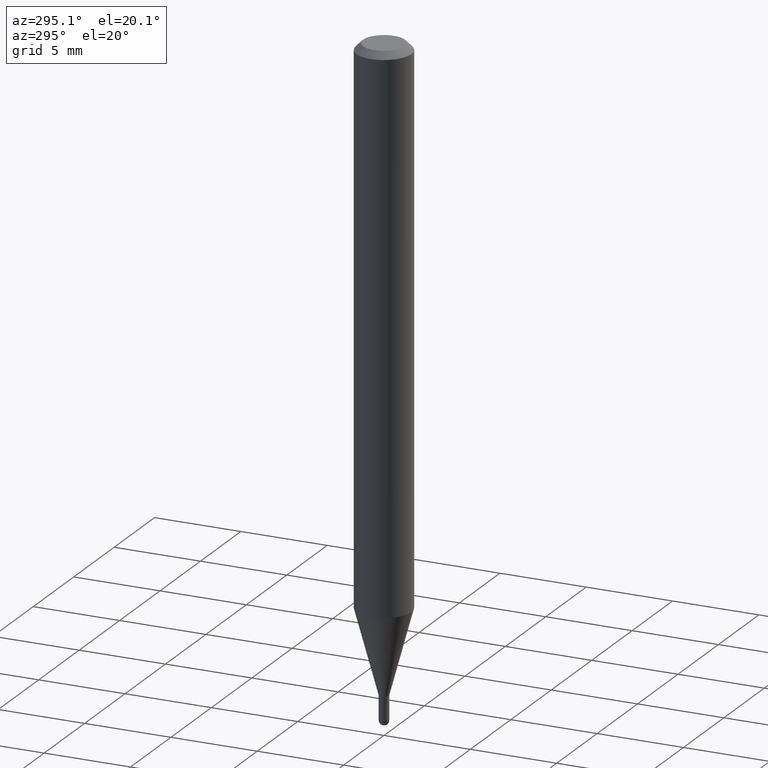
[diagram: clean part render]
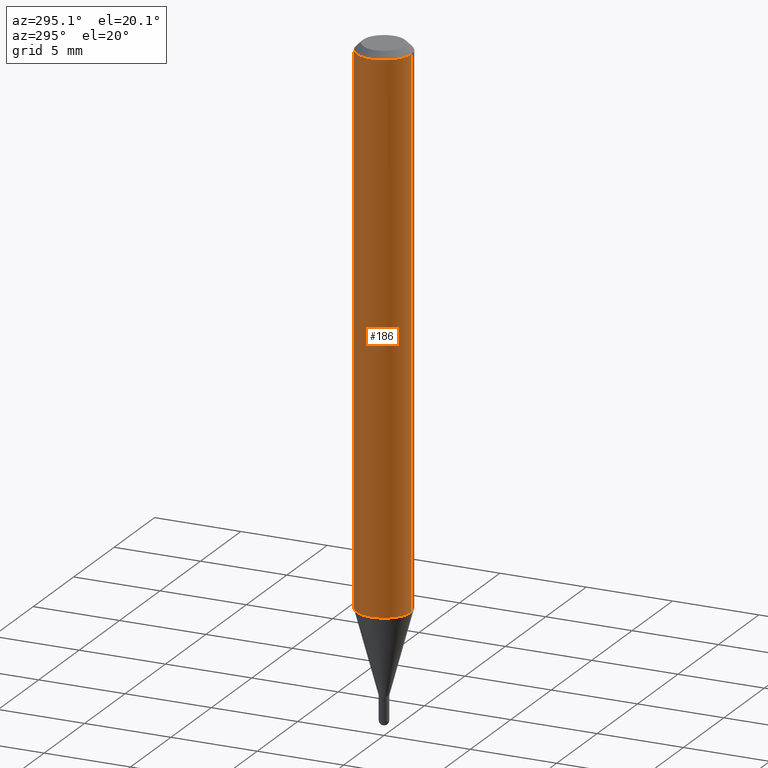
[diagram: same view with one face highlighted and labeled with its STEP entity id]
A machine part, auxiliary view. The second image highlights one B-rep face of the part: STEP entity #186.
In plain terms, the highlighted cylindrical surface (edge-blend (fillet) strip) has radius 1.5875 mm, axis along (-0, 0, 1).
Its self-contained STEP definition (entity closure, byte-faithful):
#7 = EDGE_LOOP ( 'NONE', ( #359, #410, #324, #482 ) ) ;
#19 = VERTEX_POINT ( 'NONE', #498 ) ;
#34 = DIRECTION ( 'NONE',  ( -2.445461482890761965E-29, 3.491491826217505762E-15, 1.000000000000000000 ) ) ;
#49 = DIRECTION ( 'NONE',  ( -6.982962677686265922E-15, -1.000000000000000000, 4.370956789862821150E-15 ) ) ;
#78 = CYLINDRICAL_SURFACE ( 'NONE', #83, 0.06250000000000000000 ) ;
#82 = VECTOR ( 'NONE', #166, 39.37007874015748143 ) ;
#83 = AXIS2_PLACEMENT_3D ( 'NONE', #188, #340, #463 ) ;
#111 = CARTESIAN_POINT ( 'NONE',  ( -4.364351673553916201E-16, -0.06250000000000000000, 2.182182391385941101E-16 ) ) ;
#120 = FACE_OUTER_BOUND ( 'NONE', #7, .T. ) ;
#121 = LINE ( 'NONE', #111, #328 ) ;
#138 = AXIS2_PLACEMENT_3D ( 'NONE', #360, #277, #206 ) ;
#140 = CARTESIAN_POINT ( 'NONE',  ( 4.440892098500625669E-16, 0.06250000000000000000, -2.182182391385941101E-16 ) ) ;
#165 = VERTEX_POINT ( 'NONE', #414 ) ;
#166 = DIRECTION ( 'NONE',  ( -2.445461482890761965E-29, 3.491491826217505762E-15, 1.000000000000000000 ) ) ;
#186 = ADVANCED_FACE ( 'NONE', ( #120 ), #78, .T. ) ;
#188 = CARTESIAN_POINT ( 'NONE',  ( 0.000000000000000000, 0.000000000000000000, 0.000000000000000000 ) ) ;
#194 = CIRCLE ( 'NONE', #411, 0.06250000000000000000 ) ;
#195 = EDGE_CURVE ( 'NONE', #165, #239, #121, .T. ) ;
#196 = CARTESIAN_POINT ( 'NONE',  ( 4.440892098500927901E-16, 0.06249999999999566319, -1.241799383410210122 ) ) ;
#206 = DIRECTION ( 'NONE',  ( -6.982962677686265922E-15, -1.000000000000000000, 3.483106191921935554E-15 ) ) ;
#229 = CIRCLE ( 'NONE', #138, 0.06250000000000000000 ) ;
#239 = VERTEX_POINT ( 'NONE', #437 ) ;
#277 = DIRECTION ( 'NONE',  ( -2.445461482890762245E-29, 3.491491826217505762E-15, 1.000000000000000000 ) ) ;
#320 = LINE ( 'NONE', #140, #82 ) ;
#324 = ORIENTED_EDGE ( 'NONE', *, *, #195, .T. ) ;
#328 = VECTOR ( 'NONE', #34, 39.37007874015748143 ) ;
#340 = DIRECTION ( 'NONE',  ( -2.445461482890762245E-29, 3.491491826217505762E-15, 1.000000000000000000 ) ) ;
#355 = VERTEX_POINT ( 'NONE', #196 ) ;
#359 = ORIENTED_EDGE ( 'NONE', *, *, #418, .F. ) ;
#360 = CARTESIAN_POINT ( 'NONE',  ( 3.668192224336159377E-31, -5.237237739326281594E-17, -0.01500000000000006710 ) ) ;
#381 = EDGE_CURVE ( 'NONE', #19, #239, #229, .T. ) ;
#399 = CARTESIAN_POINT ( 'NONE',  ( 3.036772561607166084E-29, -4.335732396978686706E-15, -1.241799383410209900 ) ) ;
#410 = ORIENTED_EDGE ( 'NONE', *, *, #416, .T. ) ;
#411 = AXIS2_PLACEMENT_3D ( 'NONE', #399, #491, #49 ) ;
#414 = CARTESIAN_POINT ( 'NONE',  ( -4.364351673553612983E-16, -0.06250000000000434375, -1.241799383410209678 ) ) ;
#416 = EDGE_CURVE ( 'NONE', #355, #165, #194, .T. ) ;
#418 = EDGE_CURVE ( 'NONE', #355, #19, #320, .T. ) ;
#437 = CARTESIAN_POINT ( 'NONE',  ( -4.364351673553912750E-16, -0.06250000000000005551, -0.01499999999999984852 ) ) ;
#463 = DIRECTION ( 'NONE',  ( -6.982962677686265922E-15, -1.000000000000000000, 3.491491826217505762E-15 ) ) ;
#482 = ORIENTED_EDGE ( 'NONE', *, *, #381, .F. ) ;
#491 = DIRECTION ( 'NONE',  ( -2.445461482890762245E-29, 3.491491826217505762E-15, 1.000000000000000000 ) ) ;
#498 = CARTESIAN_POINT ( 'NONE',  ( 4.440892098500930859E-16, 0.06249999999999993755, -0.01500000000000028394 ) ) ;